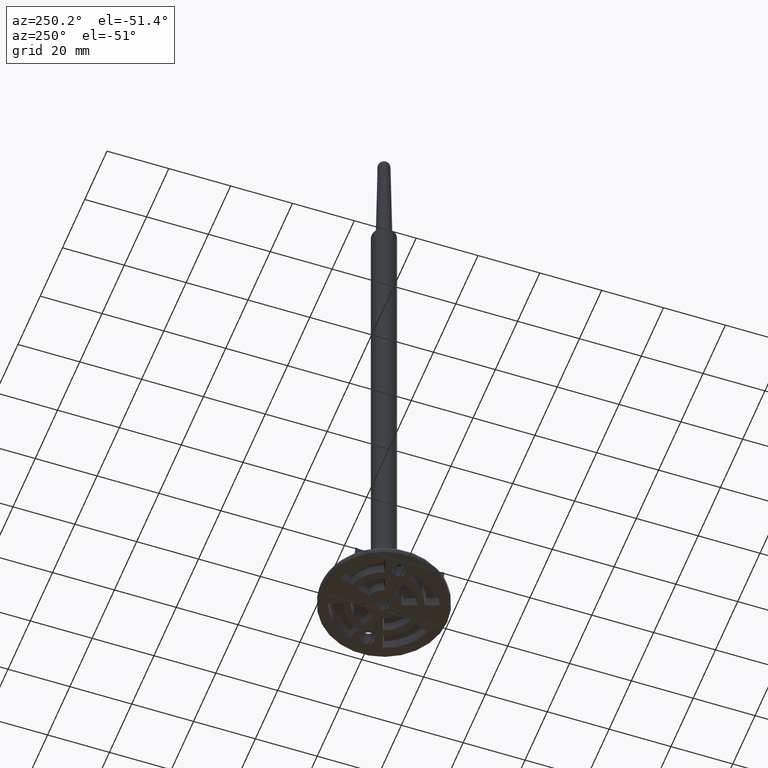
[diagram: clean part render]
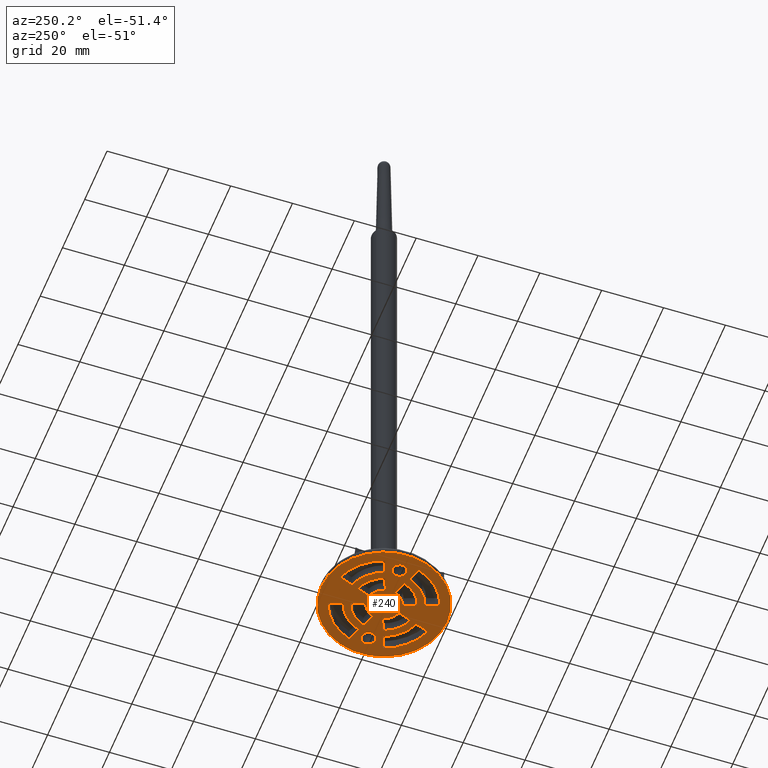
[diagram: same view with one face highlighted and labeled with its STEP entity id]
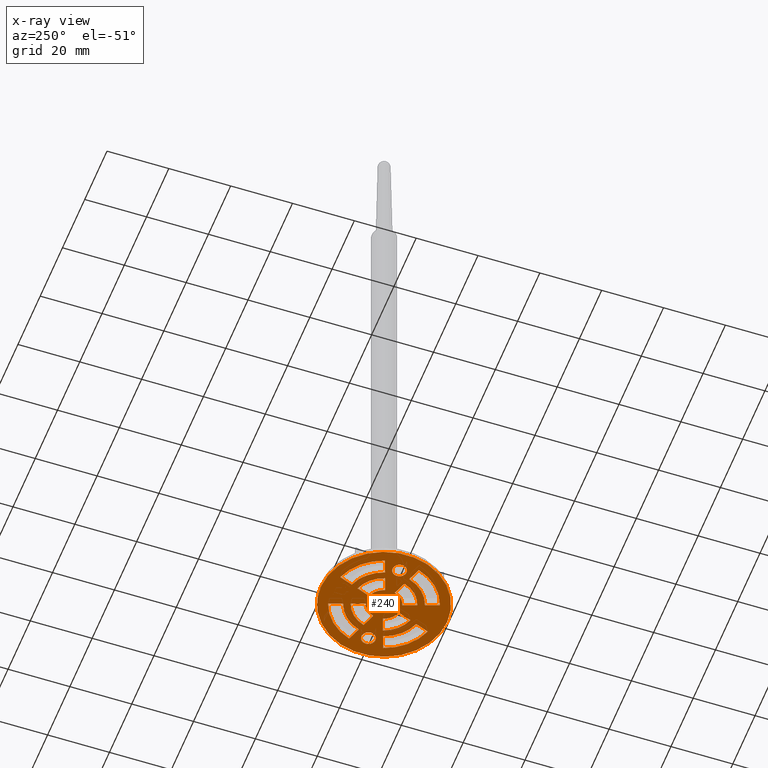
[diagram: x-ray of the same camera — body ghosted, the highlighted face saturated]
A machine part, auxiliary view. The second image highlights one B-rep face of the part: STEP entity #240.
The next image is the same camera in x-ray: the body ghosted, the highlighted face saturated — about 0% of this face is hidden behind the body in this view.
In plain terms, the highlighted planar face has unit normal (-0, 0, 1).
Its self-contained STEP definition (entity closure, byte-faithful):
#240 = ADVANCED_FACE( '', ( #450, #451, #452, #453, #454, #455, #456, #457, #458, #459, #460, #461 ), #462, .F. );
#450 = FACE_BOUND( '', #738, .T. );
#451 = FACE_BOUND( '', #739, .T. );
#452 = FACE_BOUND( '', #740, .T. );
#453 = FACE_BOUND( '', #741, .T. );
#454 = FACE_BOUND( '', #742, .T. );
#455 = FACE_BOUND( '', #743, .T. );
#456 = FACE_BOUND( '', #744, .T. );
#457 = FACE_OUTER_BOUND( '', #745, .T. );
#458 = FACE_BOUND( '', #746, .T. );
#459 = FACE_BOUND( '', #747, .T. );
#460 = FACE_BOUND( '', #748, .T. );
#461 = FACE_BOUND( '', #749, .T. );
#462 = PLANE( '', #750 );
#738 = EDGE_LOOP( '', ( #1400 ) );
#739 = EDGE_LOOP( '', ( #1401 ) );
#740 = EDGE_LOOP( '', ( #1402 ) );
#741 = EDGE_LOOP( '', ( #1403, #1404, #1405, #1406 ) );
#742 = EDGE_LOOP( '', ( #1407, #1408, #1409, #1410 ) );
#743 = EDGE_LOOP( '', ( #1411, #1412, #1413, #1414 ) );
#744 = EDGE_LOOP( '', ( #1415, #1416, #1417, #1418 ) );
#745 = EDGE_LOOP( '', ( #1419 ) );
#746 = EDGE_LOOP( '', ( #1420, #1421, #1422, #1423 ) );
#747 = EDGE_LOOP( '', ( #1424, #1425, #1426, #1427 ) );
#748 = EDGE_LOOP( '', ( #1428, #1429, #1430, #1431 ) );
#749 = EDGE_LOOP( '', ( #1432, #1433, #1434, #1435 ) );
#750 = AXIS2_PLACEMENT_3D( '', #1436, #1437, #1438 );
#1400 = ORIENTED_EDGE( '', *, *, #1975, .T. );
#1401 = ORIENTED_EDGE( '', *, *, #1981, .T. );
#1402 = ORIENTED_EDGE( '', *, *, #1941, .T. );
#1403 = ORIENTED_EDGE( '', *, *, #1845, .F. );
#1404 = ORIENTED_EDGE( '', *, *, #1848, .F. );
#1405 = ORIENTED_EDGE( '', *, *, #1850, .F. );
#1406 = ORIENTED_EDGE( '', *, *, #1851, .F. );
#1407 = ORIENTED_EDGE( '', *, *, #1866, .F. );
#1408 = ORIENTED_EDGE( '', *, *, #1870, .F. );
#1409 = ORIENTED_EDGE( '', *, *, #1873, .F. );
#1410 = ORIENTED_EDGE( '', *, *, #1875, .F. );
#1411 = ORIENTED_EDGE( '', *, *, #1890, .F. );
#1412 = ORIENTED_EDGE( '', *, *, #1894, .F. );
#1413 = ORIENTED_EDGE( '', *, *, #1897, .F. );
#1414 = ORIENTED_EDGE( '', *, *, #1899, .F. );
#1415 = ORIENTED_EDGE( '', *, *, #1906, .T. );
#1416 = ORIENTED_EDGE( '', *, *, #1910, .T. );
#1417 = ORIENTED_EDGE( '', *, *, #1911, .T. );
#1418 = ORIENTED_EDGE( '', *, *, #1902, .T. );
#1419 = ORIENTED_EDGE( '', *, *, #1807, .T. );
#1420 = ORIENTED_EDGE( '', *, *, #1878, .F. );
#1421 = ORIENTED_EDGE( '', *, *, #1882, .F. );
#1422 = ORIENTED_EDGE( '', *, *, #1885, .F. );
#1423 = ORIENTED_EDGE( '', *, *, #1887, .F. );
#1424 = ORIENTED_EDGE( '', *, *, #1854, .F. );
#1425 = ORIENTED_EDGE( '', *, *, #1858, .F. );
#1426 = ORIENTED_EDGE( '', *, *, #1861, .F. );
#1427 = ORIENTED_EDGE( '', *, *, #1863, .F. );
#1428 = ORIENTED_EDGE( '', *, *, #1834, .T. );
#1429 = ORIENTED_EDGE( '', *, *, #1838, .T. );
#1430 = ORIENTED_EDGE( '', *, *, #1839, .T. );
#1431 = ORIENTED_EDGE( '', *, *, #1830, .T. );
#1432 = ORIENTED_EDGE( '', *, *, #1818, .F. );
#1433 = ORIENTED_EDGE( '', *, *, #1822, .F. );
#1434 = ORIENTED_EDGE( '', *, *, #1825, .F. );
#1435 = ORIENTED_EDGE( '', *, *, #1827, .F. );
#1436 = CARTESIAN_POINT( '', ( 20.4344021649691, 1.25120493638915E-015, 6.25602468194573E-016 ) );
#1437 = DIRECTION( '', ( -1.12474554136660E-032, 1.83690953073357E-016, 1.00000000000000 ) );
#1438 = DIRECTION( '', ( 6.12303176911189E-017, -1.00000000000000, 1.83690953073357E-016 ) );
#1807 = EDGE_CURVE( '', #2109, #2109, #2110, .T. );
#1818 = EDGE_CURVE( '', #2127, #2129, #2130, .T. );
#1822 = EDGE_CURVE( '', #2134, #2127, #2136, .T. );
#1825 = EDGE_CURVE( '', #2139, #2134, #2141, .F. );
#1827 = EDGE_CURVE( '', #2129, #2139, #2143, .T. );
#1830 = EDGE_CURVE( '', #2149, #2147, #2150, .F. );
#1834 = EDGE_CURVE( '', #2147, #2154, #2156, .F. );
#1838 = EDGE_CURVE( '', #2154, #2160, #2162, .T. );
#1839 = EDGE_CURVE( '', #2160, #2149, #2163, .F. );
#1845 = EDGE_CURVE( '', #2172, #2174, #2175, .T. );
#1848 = EDGE_CURVE( '', #2177, #2172, #2179, .T. );
#1850 = EDGE_CURVE( '', #2180, #2177, #2182, .F. );
#1851 = EDGE_CURVE( '', #2174, #2180, #2183, .T. );
#1854 = EDGE_CURVE( '', #2187, #2189, #2190, .T. );
#1858 = EDGE_CURVE( '', #2194, #2187, #2196, .T. );
#1861 = EDGE_CURVE( '', #2199, #2194, #2201, .F. );
#1863 = EDGE_CURVE( '', #2189, #2199, #2203, .T. );
#1866 = EDGE_CURVE( '', #2207, #2209, #2210, .T. );
#1870 = EDGE_CURVE( '', #2214, #2207, #2216, .F. );
#1873 = EDGE_CURVE( '', #2219, #2214, #2221, .T. );
#1875 = EDGE_CURVE( '', #2209, #2219, #2223, .T. );
#1878 = EDGE_CURVE( '', #2227, #2229, #2230, .T. );
#1882 = EDGE_CURVE( '', #2234, #2227, #2236, .F. );
#1885 = EDGE_CURVE( '', #2239, #2234, #2241, .T. );
#1887 = EDGE_CURVE( '', #2229, #2239, #2243, .T. );
#1890 = EDGE_CURVE( '', #2247, #2249, #2250, .T. );
#1894 = EDGE_CURVE( '', #2254, #2247, #2256, .F. );
#1897 = EDGE_CURVE( '', #2259, #2254, #2261, .T. );
#1899 = EDGE_CURVE( '', #2249, #2259, #2263, .T. );
#1902 = EDGE_CURVE( '', #2269, #2267, #2270, .F. );
#1906 = EDGE_CURVE( '', #2267, #2274, #2276, .F. );
#1910 = EDGE_CURVE( '', #2274, #2280, #2282, .F. );
#1911 = EDGE_CURVE( '', #2280, #2269, #2283, .T. );
#1941 = EDGE_CURVE( '', #2337, #2337, #2338, .T. );
#1975 = EDGE_CURVE( '', #2390, #2390, #2391, .T. );
#1981 = EDGE_CURVE( '', #2402, #2402, #2403, .T. );
#2109 = VERTEX_POINT( '', #2593 );
#2110 = CIRCLE( '', #2594, 20.4344021649691 );
#2127 = VERTEX_POINT( '', #2619 );
#2129 = VERTEX_POINT( '', #2624 );
#2130 = CIRCLE( '', #2625, 12.4511506137665 );
#2134 = VERTEX_POINT( '', #2633 );
#2136 = LINE( '', #2638, #2639 );
#2139 = VERTEX_POINT( '', #2642 );
#2141 = CIRCLE( '', #2647, 17.0178493862335 );
#2143 = LINE( '', #2650, #2651 );
#2147 = VERTEX_POINT( '', #2655 );
#2149 = VERTEX_POINT( '', #2660 );
#2150 = CIRCLE( '', #2661, 10.1417493862335 );
#2154 = VERTEX_POINT( '', #2669 );
#2156 = LINE( '', #2674, #2675 );
#2160 = VERTEX_POINT( '', #2680 );
#2162 = CIRCLE( '', #2685, 5.57505061376649 );
#2163 = LINE( '', #2686, #2687 );
#2172 = VERTEX_POINT( '', #2698 );
#2174 = VERTEX_POINT( '', #2703 );
#2175 = CIRCLE( '', #2704, 17.0178493862335 );
#2177 = VERTEX_POINT( '', #2709 );
#2179 = LINE( '', #2714, #2715 );
#2180 = VERTEX_POINT( '', #2716 );
#2182 = CIRCLE( '', #2721, 12.4511506137665 );
#2183 = LINE( '', #2722, #2723 );
#2187 = VERTEX_POINT( '', #2727 );
#2189 = VERTEX_POINT( '', #2732 );
#2190 = CIRCLE( '', #2733, 5.57505061376649 );
#2194 = VERTEX_POINT( '', #2741 );
#2196 = LINE( '', #2746, #2747 );
#2199 = VERTEX_POINT( '', #2750 );
#2201 = CIRCLE( '', #2755, 10.1417493862335 );
#2203 = LINE( '', #2758, #2759 );
#2207 = VERTEX_POINT( '', #2764 );
#2209 = VERTEX_POINT( '', #2769 );
#2210 = LINE( '', #2770, #2771 );
#2214 = VERTEX_POINT( '', #2778 );
#2216 = CIRCLE( '', #2783, 5.57505061376649 );
#2219 = VERTEX_POINT( '', #2787 );
#2221 = LINE( '', #2792, #2793 );
#2223 = CIRCLE( '', #2795, 10.1417493862335 );
#2227 = VERTEX_POINT( '', #2800 );
#2229 = VERTEX_POINT( '', #2805 );
#2230 = LINE( '', #2806, #2807 );
#2234 = VERTEX_POINT( '', #2814 );
#2236 = CIRCLE( '', #2819, 12.4511506137665 );
#2239 = VERTEX_POINT( '', #2823 );
#2241 = LINE( '', #2828, #2829 );
#2243 = CIRCLE( '', #2831, 17.0178493862335 );
#2247 = VERTEX_POINT( '', #2836 );
#2249 = VERTEX_POINT( '', #2841 );
#2250 = LINE( '', #2842, #2843 );
#2254 = VERTEX_POINT( '', #2850 );
#2256 = CIRCLE( '', #2855, 12.4511506137665 );
#2259 = VERTEX_POINT( '', #2859 );
#2261 = LINE( '', #2864, #2865 );
#2263 = CIRCLE( '', #2867, 17.0178493862335 );
#2267 = VERTEX_POINT( '', #2872 );
#2269 = VERTEX_POINT( '', #2877 );
#2270 = LINE( '', #2878, #2879 );
#2274 = VERTEX_POINT( '', #2886 );
#2276 = CIRCLE( '', #2891, 10.1417493862335 );
#2280 = VERTEX_POINT( '', #2896 );
#2282 = LINE( '', #2901, #2902 );
#2283 = CIRCLE( '', #2903, 5.57505061376649 );
#2337 = VERTEX_POINT( '', #3012 );
#2338 = CIRCLE( '', #3013, 2.25000000000000 );
#2390 = VERTEX_POINT( '', #3134 );
#2391 = CIRCLE( '', #3135, 2.00000000000000 );
#2402 = VERTEX_POINT( '', #3146 );
#2403 = CIRCLE( '', #3147, 2.25000000000001 );
#2593 = CARTESIAN_POINT( '', ( -1.25120493638915E-015, 20.4344021649691, -3.75361480916744E-015 ) );
#2594 = AXIS2_PLACEMENT_3D( '', #3338, #3339, #3340 );
#2619 = CARTESIAN_POINT( '', ( 3.91100585500280, -11.8209637851079, 2.59740882154510E-015 ) );
#2624 = CARTESIAN_POINT( '', ( 11.8209637851079, -3.91100585500280, 1.14442111059395E-015 ) );
#2625 = AXIS2_PLACEMENT_3D( '', #3352, #3353, #3354 );
#2633 = CARTESIAN_POINT( '', ( 5.47340782340071, -16.1136279133926, 3.38593238649353E-015 ) );
#2638 = CARTESIAN_POINT( '', ( -0.345679449193570, -0.125817030103995, 4.49116167785666E-016 ) );
#2639 = VECTOR( '', #3356, 1000.00000000000 );
#2642 = CARTESIAN_POINT( '', ( 16.1136279133926, -5.47340782340071, 1.43142021725265E-015 ) );
#2647 = AXIS2_PLACEMENT_3D( '', #3360, #3361, #3362 );
#2650 = CARTESIAN_POINT( '', ( 0.125817030103996, 0.345679449193571, 3.62506530132764E-016 ) );
#2651 = VECTOR( '', #3364, 1000.00000000000 );
#2655 = CARTESIAN_POINT( '', ( 9.64967273565335, -3.12072054307273, 9.99252848445638E-016 ) );
#2660 = CARTESIAN_POINT( '', ( 3.12072054307274, -9.64967273565335, 2.19856229927115E-015 ) );
#2661 = AXIS2_PLACEMENT_3D( '', #3368, #3369, #3370 );
#2669 = CARTESIAN_POINT( '', ( 5.35323384756485, -1.55694467446474, 7.12001368747919E-016 ) );
#2674 = CARTESIAN_POINT( '', ( 0.125817030103998, 0.345679449193571, 3.62506530132764E-016 ) );
#2675 = VECTOR( '', #3372, 1000.00000000000 );
#2680 = CARTESIAN_POINT( '', ( 1.55694467446474, -5.35323384756485, 1.40934534509674E-015 ) );
#2685 = AXIS2_PLACEMENT_3D( '', #3377, #3378, #3379 );
#2686 = CARTESIAN_POINT( '', ( -1.90273881042324, 4.15216840562495, -3.36711054137321E-016 ) );
#2687 = VECTOR( '', #3380, 1000.00000000000 );
#2698 = CARTESIAN_POINT( '', ( -5.47340782340071, -16.1136279133926, 3.38593238649353E-015 ) );
#2703 = CARTESIAN_POINT( '', ( -16.1136279133926, -5.47340782340071, 1.43142021725265E-015 ) );
#2704 = AXIS2_PLACEMENT_3D( '', #3389, #3390, #3391 );
#2709 = CARTESIAN_POINT( '', ( -3.91100585500280, -11.8209637851079, 2.59740882154510E-015 ) );
#2714 = CARTESIAN_POINT( '', ( 2.37827608926584, 5.45869634135389, -5.76708415868336E-016 ) );
#2715 = VECTOR( '', #3392, 1000.00000000000 );
#2716 = CARTESIAN_POINT( '', ( -11.8209637851079, -3.91100585500280, 1.14442111059395E-015 ) );
#2721 = AXIS2_PLACEMENT_3D( '', #3393, #3394, #3395 );
#2722 = CARTESIAN_POINT( '', ( 3.46383897119794, 1.65220738492252, 1.22509168401749E-016 ) );
#2723 = VECTOR( '', #3396, 1000.00000000000 );
#2727 = CARTESIAN_POINT( '', ( -5.35323384756485, -1.55694467446474, 7.12001368747919E-016 ) );
#2732 = CARTESIAN_POINT( '', ( -1.55694467446474, -5.35323384756485, 1.40934534509674E-015 ) );
#2733 = AXIS2_PLACEMENT_3D( '', #3400, #3401, #3402 );
#2741 = CARTESIAN_POINT( '', ( -9.64967273565335, -3.12072054307273, 9.99252848445637E-016 ) );
#2746 = CARTESIAN_POINT( '', ( -0.125817030103997, 0.345679449193574, 3.62506530132764E-016 ) );
#2747 = VECTOR( '', #3404, 1000.00000000000 );
#2750 = CARTESIAN_POINT( '', ( -3.12072054307274, -9.64967273565335, 2.19856229927115E-015 ) );
#2755 = AXIS2_PLACEMENT_3D( '', #3408, #3409, #3410 );
#2758 = CARTESIAN_POINT( '', ( 0.345679449193572, -0.125817030103996, 4.49116167785667E-016 ) );
#2759 = VECTOR( '', #3412, 1000.00000000000 );
#2764 = CARTESIAN_POINT( '', ( -5.35323384756485, 1.55694467446474, 1.40008066478090E-016 ) );
#2769 = CARTESIAN_POINT( '', ( -9.64967273565335, 3.12072054307273, -1.47243413219629E-016 ) );
#2770 = CARTESIAN_POINT( '', ( -0.125817030103994, -0.345679449193574, 4.89502905093245E-016 ) );
#2771 = VECTOR( '', #3414, 1000.00000000000 );
#2778 = CARTESIAN_POINT( '', ( -1.55694467446474, 5.35323384756485, -5.57335909870734E-016 ) );
#2783 = AXIS2_PLACEMENT_3D( '', #3418, #3419, #3420 );
#2787 = CARTESIAN_POINT( '', ( -3.12072054307274, 9.64967273565335, -1.34655286404514E-015 ) );
#2792 = CARTESIAN_POINT( '', ( -1.21137991203610, 4.40380246583294, -3.82933954482646E-016 ) );
#2793 = VECTOR( '', #3422, 1000.00000000000 );
#2795 = AXIS2_PLACEMENT_3D( '', #3426, #3427, #3428 );
#2800 = CARTESIAN_POINT( '', ( -11.8209637851079, 3.91100585500279, -2.92411675367937E-016 ) );
#2805 = CARTESIAN_POINT( '', ( -16.1136279133926, 5.47340782340071, -5.79410782026638E-016 ) );
#2806 = CARTESIAN_POINT( '', ( -0.125817030103994, -0.345679449193574, 9.15507622706249E-016 ) );
#2807 = VECTOR( '', #3430, 1000.00000000000 );
#2814 = CARTESIAN_POINT( '', ( -3.91100585500280, 11.8209637851079, -1.74539938631909E-015 ) );
#2819 = AXIS2_PLACEMENT_3D( '', #3434, #3435, #3436 );
#2823 = CARTESIAN_POINT( '', ( -5.47340782340071, 16.1136279133926, -2.53392295126752E-015 ) );
#2828 = CARTESIAN_POINT( '', ( -1.21137991203610, 4.40380246583294, -3.82933954482646E-016 ) );
#2829 = VECTOR( '', #3438, 1000.00000000000 );
#2831 = AXIS2_PLACEMENT_3D( '', #3442, #3443, #3444 );
#2836 = CARTESIAN_POINT( '', ( 3.91100585500280, 11.8209637851079, -1.74539938631909E-015 ) );
#2841 = CARTESIAN_POINT( '', ( 5.47340782340071, 16.1136279133926, -2.53392295126752E-015 ) );
#2842 = CARTESIAN_POINT( '', ( 1.68691719087869, 5.71033040156188, -6.22931316213661E-016 ) );
#2843 = VECTOR( '', #3446, 1000.00000000000 );
#2850 = CARTESIAN_POINT( '', ( 11.8209637851079, 3.91100585500280, -2.92411675367937E-016 ) );
#2855 = AXIS2_PLACEMENT_3D( '', #3450, #3451, #3452 );
#2859 = CARTESIAN_POINT( '', ( 16.1136279133926, 5.47340782340071, -5.79410782026638E-016 ) );
#2864 = CARTESIAN_POINT( '', ( 3.71547303140593, 0.960848486535372, 2.49505543362230E-016 ) );
#2865 = VECTOR( '', #3454, 1000.00000000000 );
#2867 = AXIS2_PLACEMENT_3D( '', #3458, #3459, #3460 );
#2872 = CARTESIAN_POINT( '', ( 9.64967273565335, 3.12072054307274, -1.47243413219630E-016 ) );
#2877 = CARTESIAN_POINT( '', ( 5.35323384756485, 1.55694467446474, 1.40008066478089E-016 ) );
#2878 = CARTESIAN_POINT( '', ( 3.71547303140593, 0.960848486535374, 2.49505543362229E-016 ) );
#2879 = VECTOR( '', #3462, 1000.00000000000 );
#2886 = CARTESIAN_POINT( '', ( 3.12072054307274, 9.64967273565335, -1.34655286404514E-015 ) );
#2891 = AXIS2_PLACEMENT_3D( '', #3466, #3467, #3468 );
#2896 = CARTESIAN_POINT( '', ( 1.55694467446474, 5.35323384756485, -5.57335909870734E-016 ) );
#2901 = CARTESIAN_POINT( '', ( 1.68691719087869, 5.71033040156188, -6.22931316213661E-016 ) );
#2902 = VECTOR( '', #3473, 1000.00000000000 );
#2903 = AXIS2_PLACEMENT_3D( '', #3474, #3475, #3476 );
#3012 = CARTESIAN_POINT( '', ( -11.7500000000000, -9.18435845238954E-022, -4.99989699989656E-006 ) );
#3013 = AXIS2_PLACEMENT_3D( '', #3511, #3512, #3513 );
#3134 = CARTESIAN_POINT( '', ( 2.00000000000000, -9.18435845238954E-022, -4.99989699989656E-006 ) );
#3135 = AXIS2_PLACEMENT_3D( '', #3550, #3551, #3552 );
#3146 = CARTESIAN_POINT( '', ( 16.2500000000000, -9.18435845238954E-022, -4.99989699989656E-006 ) );
#3147 = AXIS2_PLACEMENT_3D( '', #3568, #3569, #3570 );
#3338 = CARTESIAN_POINT( '', ( 0.000000000000000, 0.000000000000000, 0.000000000000000 ) );
#3339 = DIRECTION( '', ( 1.12474554136660E-032, -1.83690953073357E-016, -1.00000000000000 ) );
#3340 = DIRECTION( '', ( -6.12303176911189E-017, 1.00000000000000, -1.83690953073357E-016 ) );
#3352 = CARTESIAN_POINT( '', ( -4.79146906736365E-048, 7.82532125920789E-032, 4.26004717613004E-016 ) );
#3353 = DIRECTION( '', ( -1.12474554136660E-032, 1.83690953073357E-016, 1.00000000000000 ) );
#3354 = DIRECTION( '', ( 6.12303176911189E-017, -1.00000000000000, 1.83690953073357E-016 ) );
#3356 = DIRECTION( '', ( -0.342020143325669, 0.939692620785908, -1.72613033108164E-016 ) );
#3360 = CARTESIAN_POINT( '', ( -4.79146906736365E-048, 7.82532125920789E-032, 4.26004717613004E-016 ) );
#3361 = DIRECTION( '', ( -1.12474554136660E-032, 1.83690953073357E-016, 1.00000000000000 ) );
#3362 = DIRECTION( '', ( 6.12303176911189E-017, -1.00000000000000, 1.83690953073357E-016 ) );
#3364 = DIRECTION( '', ( 0.939692620785908, -0.342020143325669, 6.28260060977781E-017 ) );
#3368 = CARTESIAN_POINT( '', ( -4.79146906736365E-048, 7.82532125920789E-032, 4.26004717613004E-016 ) );
#3369 = DIRECTION( '', ( 1.12474554136660E-032, -1.83690953073357E-016, -1.00000000000000 ) );
#3370 = DIRECTION( '', ( -6.12303176911189E-017, 1.00000000000000, -1.83690953073357E-016 ) );
#3372 = DIRECTION( '', ( 0.939692620785908, -0.342020143325669, 6.28260060977781E-017 ) );
#3377 = CARTESIAN_POINT( '', ( -4.79146906736365E-048, 7.82532125920789E-032, 4.26004717613004E-016 ) );
#3378 = DIRECTION( '', ( 1.12474554136660E-032, -1.83690953073357E-016, -1.00000000000000 ) );
#3379 = DIRECTION( '', ( -6.12303176911189E-017, 1.00000000000000, -1.83690953073357E-016 ) );
#3380 = DIRECTION( '', ( -0.342020143325669, 0.939692620785908, -1.72613033108164E-016 ) );
#3389 = CARTESIAN_POINT( '', ( 2.39573453368183E-047, -3.91266062960395E-031, -2.13002358806502E-015 ) );
#3390 = DIRECTION( '', ( 1.12474554136660E-032, -1.83690953073357E-016, -1.00000000000000 ) );
#3391 = DIRECTION( '', ( -6.12303176911189E-017, 1.00000000000000, -1.83690953073357E-016 ) );
#3392 = DIRECTION( '', ( -0.342020143325669, -0.939692620785908, 1.72613033108164E-016 ) );
#3393 = CARTESIAN_POINT( '', ( 2.39573453368183E-047, -3.91266062960395E-031, -2.13002358806502E-015 ) );
#3394 = DIRECTION( '', ( 1.12474554136660E-032, -1.83690953073357E-016, -1.00000000000000 ) );
#3395 = DIRECTION( '', ( -6.12303176911189E-017, 1.00000000000000, -1.83690953073357E-016 ) );
#3396 = DIRECTION( '', ( 0.939692620785908, 0.342020143325669, -6.28260060977781E-017 ) );
#3400 = CARTESIAN_POINT( '', ( -4.79146906736365E-048, 7.82532125920789E-032, 4.26004717613004E-016 ) );
#3401 = DIRECTION( '', ( -1.12474554136660E-032, 1.83690953073357E-016, 1.00000000000000 ) );
#3402 = DIRECTION( '', ( 6.12303176911189E-017, -1.00000000000000, 1.83690953073357E-016 ) );
#3404 = DIRECTION( '', ( 0.939692620785908, 0.342020143325669, -6.28260060977781E-017 ) );
#3408 = CARTESIAN_POINT( '', ( -4.79146906736365E-048, 7.82532125920789E-032, 4.26004717613004E-016 ) );
#3409 = DIRECTION( '', ( -1.12474554136660E-032, 1.83690953073357E-016, 1.00000000000000 ) );
#3410 = DIRECTION( '', ( 6.12303176911189E-017, -1.00000000000000, 1.83690953073357E-016 ) );
#3412 = DIRECTION( '', ( -0.342020143325669, -0.939692620785908, 1.72613033108164E-016 ) );
#3414 = DIRECTION( '', ( -0.939692620785908, 0.342020143325669, -6.28260060977781E-017 ) );
#3418 = CARTESIAN_POINT( '', ( -4.79146906736365E-048, 7.82532125920789E-032, 4.26004717613004E-016 ) );
#3419 = DIRECTION( '', ( 1.12474554136660E-032, -1.83690953073357E-016, -1.00000000000000 ) );
#3420 = DIRECTION( '', ( -6.12303176911189E-017, 1.00000000000000, -1.83690953073357E-016 ) );
#3422 = DIRECTION( '', ( 0.342020143325669, -0.939692620785908, 1.72613033108164E-016 ) );
#3426 = CARTESIAN_POINT( '', ( -4.79146906736365E-048, 7.82532125920789E-032, 4.26004717613004E-016 ) );
#3427 = DIRECTION( '', ( 1.12474554136660E-032, -1.83690953073357E-016, -1.00000000000000 ) );
#3428 = DIRECTION( '', ( -6.12303176911189E-017, 1.00000000000000, -1.83690953073357E-016 ) );
#3430 = DIRECTION( '', ( -0.939692620785908, 0.342020143325669, -6.28260060977781E-017 ) );
#3434 = CARTESIAN_POINT( '', ( 2.39573453368183E-047, -3.91266062960395E-031, -2.13002358806502E-015 ) );
#3435 = DIRECTION( '', ( 1.12474554136660E-032, -1.83690953073357E-016, -1.00000000000000 ) );
#3436 = DIRECTION( '', ( -6.12303176911189E-017, 1.00000000000000, -1.83690953073357E-016 ) );
#3438 = DIRECTION( '', ( 0.342020143325669, -0.939692620785908, 1.72613033108164E-016 ) );
#3442 = CARTESIAN_POINT( '', ( 2.39573453368183E-047, -3.91266062960395E-031, -2.13002358806502E-015 ) );
#3443 = DIRECTION( '', ( 1.12474554136660E-032, -1.83690953073357E-016, -1.00000000000000 ) );
#3444 = DIRECTION( '', ( -6.12303176911189E-017, 1.00000000000000, -1.83690953073357E-016 ) );
#3446 = DIRECTION( '', ( 0.342020143325669, 0.939692620785908, -1.72613033108164E-016 ) );
#3450 = CARTESIAN_POINT( '', ( 2.39573453368183E-047, -3.91266062960395E-031, -2.13002358806502E-015 ) );
#3451 = DIRECTION( '', ( 1.12474554136660E-032, -1.83690953073357E-016, -1.00000000000000 ) );
#3452 = DIRECTION( '', ( -6.12303176911189E-017, 1.00000000000000, -1.83690953073357E-016 ) );
#3454 = DIRECTION( '', ( -0.939692620785908, -0.342020143325669, 6.28260060977781E-017 ) );
#3458 = CARTESIAN_POINT( '', ( 2.39573453368183E-047, -3.91266062960395E-031, -2.13002358806502E-015 ) );
#3459 = DIRECTION( '', ( 1.12474554136660E-032, -1.83690953073357E-016, -1.00000000000000 ) );
#3460 = DIRECTION( '', ( -6.12303176911189E-017, 1.00000000000000, -1.83690953073357E-016 ) );
#3462 = DIRECTION( '', ( -0.939692620785908, -0.342020143325669, 6.28260060977781E-017 ) );
#3466 = CARTESIAN_POINT( '', ( -4.79146906736365E-048, 7.82532125920789E-032, 4.26004717613004E-016 ) );
#3467 = DIRECTION( '', ( 1.12474554136660E-032, -1.83690953073357E-016, -1.00000000000000 ) );
#3468 = DIRECTION( '', ( -6.12303176911189E-017, 1.00000000000000, -1.83690953073357E-016 ) );
#3473 = DIRECTION( '', ( 0.342020143325669, 0.939692620785908, -1.72613033108164E-016 ) );
#3474 = CARTESIAN_POINT( '', ( -4.79146906736365E-048, 7.82532125920789E-032, 4.26004717613004E-016 ) );
#3475 = DIRECTION( '', ( 1.12474554136660E-032, -1.83690953073357E-016, -1.00000000000000 ) );
#3476 = DIRECTION( '', ( -6.12303176911189E-017, 1.00000000000000, -1.83690953073357E-016 ) );
#3511 = CARTESIAN_POINT( '', ( -14.0000000000000, -9.18435845238954E-022, -4.99989699989656E-006 ) );
#3512 = DIRECTION( '', ( -1.12474554136660E-032, -1.26466724719837E-022, 1.00000000000000 ) );
#3513 = DIRECTION( '', ( 1.00000000000000, 4.75158170683057E-048, 1.12474554136660E-032 ) );
#3550 = CARTESIAN_POINT( '', ( 0.000000000000000, -9.18435845238954E-022, -4.99989699989656E-006 ) );
#3551 = DIRECTION( '', ( -1.12474554136660E-032, 1.95214624562515E-022, 1.00000000000000 ) );
#3552 = DIRECTION( '', ( 1.00000000000000, 0.000000000000000, 1.12474554136660E-032 ) );
#3568 = CARTESIAN_POINT( '', ( 14.0000000000000, -9.18435845238954E-022, -4.99989699989656E-006 ) );
#3569 = DIRECTION( '', ( -1.12474554136660E-032, -1.26466724448666E-022, 1.00000000000000 ) );
#3570 = DIRECTION( '', ( 1.00000000000000, 3.03858167864314E-064, 1.12474554136660E-032 ) );